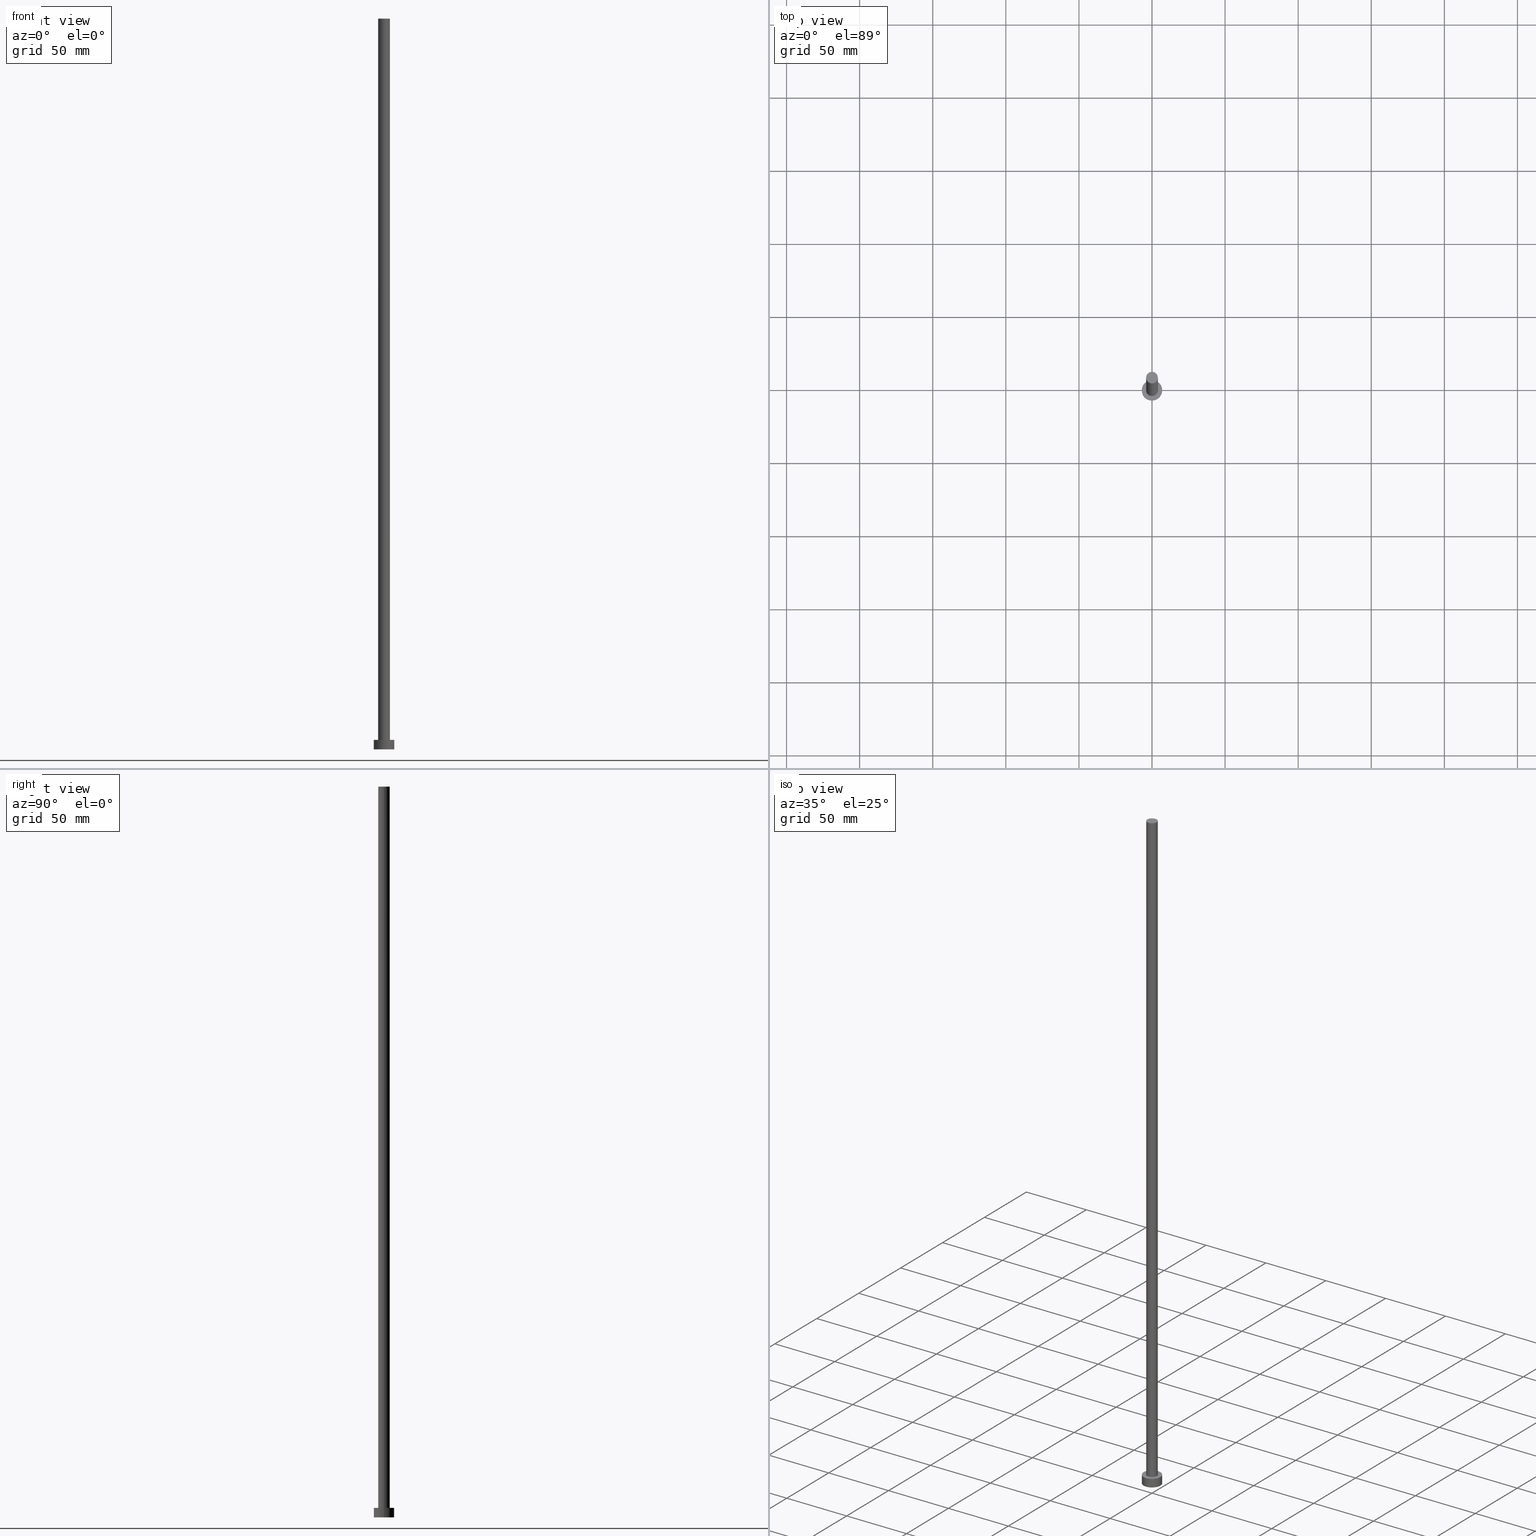
[diagram: canonical four-view strip — front | top / right | iso, engineering-drawing reading convention]
A machine part, canonical four-view strip (front | top / right | iso — engineering-drawing reading convention). The complete STEP part file that produces these views, byte-faithful:
ISO-10303-21;
HEADER;
FILE_DESCRIPTION (( 'STEP AP203' ),
    '1' );
FILE_NAME ('c3be.STEP',
    '2023-02-13T14:18:45',
    ( '' ),
    ( '' ),
    'SwSTEP 2.0',
    'SolidWorks 2019',
    '' );
FILE_SCHEMA (( 'CONFIG_CONTROL_DESIGN' ));
ENDSEC;

DATA;
#1 = ADVANCED_FACE ( 'NONE', ( #161 ), #162, .T. ) ;
#2 = PRODUCT ( 'c3be', 'c3be', '', ( #95 ) ) ;
#3 = ORIENTED_EDGE ( 'NONE', *, *, #59, .T. ) ;
#4 = CC_DESIGN_DATE_AND_TIME_ASSIGNMENT ( #130, #5, ( #211 ) ) ;
#5 = DATE_TIME_ROLE ( 'classification_date' ) ;
#6 = CARTESIAN_POINT ( 'NONE',  ( -7.000000000000000000, 0.000000000000000000, 6.500000000000000000 ) ) ;
#7 = PERSON_AND_ORGANIZATION ( #247, #133 ) ;
#8 = DIRECTION ( 'NONE',  ( 0.000000000000000000, 0.000000000000000000, 1.000000000000000000 ) ) ;
#9 = AXIS2_PLACEMENT_3D ( 'NONE', #83, #8, #135 ) ;
#10 = FACE_OUTER_BOUND ( 'NONE', #193, .T. ) ;
#11 = APPLICATION_PROTOCOL_DEFINITION ( 'international standard', 'config_control_design', 1994, #25 ) ;
#12 = CARTESIAN_POINT ( 'NONE',  ( -7.000000000000000000, 0.000000000000000000, 6.500000000000000000 ) ) ;
#13 = ORIENTED_EDGE ( 'NONE', *, *, #89, .F. ) ;
#14 = DIRECTION ( 'NONE',  ( 1.000000000000000000, 0.000000000000000000, 0.000000000000000000 ) ) ;
#15 = DIRECTION ( 'NONE',  ( 0.000000000000000000, 0.000000000000000000, 1.000000000000000000 ) ) ;
#16 = VECTOR ( 'NONE', #68, 1000.000000000000000 ) ;
#17 = VERTEX_POINT ( 'NONE', #128 ) ;
#18 = EDGE_LOOP ( 'NONE', ( #217, #33 ) ) ;
#19 = SECURITY_CLASSIFICATION_LEVEL ( 'unclassified' ) ;
#20 = VERTEX_POINT ( 'NONE', #164 ) ;
#21 = APPROVAL_PERSON_ORGANIZATION ( #61, #215, #235 ) ;
#22 = EDGE_LOOP ( 'NONE', ( #232, #35 ) ) ;
#23 = AXIS2_PLACEMENT_3D ( 'NONE', #110, #48, #148 ) ;
#24 = CARTESIAN_POINT ( 'NONE',  ( 0.000000000000000000, 0.000000000000000000, 6.500000000000000000 ) ) ;
#25 = APPLICATION_CONTEXT ( 'configuration controlled 3d designs of mechanical parts and assemblies' ) ;
#26 = FACE_OUTER_BOUND ( 'NONE', #57, .T. ) ;
#27 = ADVANCED_FACE ( 'NONE', ( #42, #26 ), #185, .T. ) ;
#28 = DIRECTION ( 'NONE',  ( -1.000000000000000000, 0.000000000000000000, 0.000000000000000000 ) ) ;
#29 = AXIS2_PLACEMENT_3D ( 'NONE', #228, #152, #14 ) ;
#30 = CARTESIAN_POINT ( 'NONE',  ( -4.000000000000000000, 0.000000000000000000, 500.0000000000000000 ) ) ;
#31 =( NAMED_UNIT ( * ) SI_UNIT ( $, .STERADIAN. ) SOLID_ANGLE_UNIT ( ) );
#32 = DIRECTION ( 'NONE',  ( 0.000000000000000000, 0.000000000000000000, 1.000000000000000000 ) ) ;
#33 = ORIENTED_EDGE ( 'NONE', *, *, #227, .F. ) ;
#34 = CARTESIAN_POINT ( 'NONE',  ( 0.000000000000000000, 0.000000000000000000, 0.000000000000000000 ) ) ;
#35 = ORIENTED_EDGE ( 'NONE', *, *, #163, .F. ) ;
#36 = CALENDAR_DATE ( 2023, 13, 2 ) ;
#37 = COORDINATED_UNIVERSAL_TIME_OFFSET ( 1, 0, .AHEAD. ) ;
#38 = EDGE_LOOP ( 'NONE', ( #176, #198, #52, #142 ) ) ;
#39 = CC_DESIGN_SECURITY_CLASSIFICATION ( #211, ( #241 ) ) ;
#40 = PRODUCT_DEFINITION ( 'NEZN�M�', '', #241, #116 ) ;
#41 = VECTOR ( 'NONE', #206, 1000.000000000000000 ) ;
#42 = FACE_BOUND ( 'NONE', #18, .T. ) ;
#43 = LOCAL_TIME ( 15, 18, 45.00000000000000000, #65 ) ;
#44 = COORDINATED_UNIVERSAL_TIME_OFFSET ( 1, 0, .AHEAD. ) ;
#45 = PLANE ( 'NONE',  #236 ) ;
#46 = CARTESIAN_POINT ( 'NONE',  ( -4.000000000000000000, 0.000000000000000000, 500.0000000000000000 ) ) ;
#47 = CARTESIAN_POINT ( 'NONE',  ( 0.000000000000000000, 0.000000000000000000, 6.500000000000000000 ) ) ;
#48 = DIRECTION ( 'NONE',  ( 0.000000000000000000, 0.000000000000000000, 1.000000000000000000 ) ) ;
#49 = CC_DESIGN_PERSON_AND_ORGANIZATION_ASSIGNMENT ( #126, #199, ( #241 ) ) ;
#50 = PLANE ( 'NONE',  #202 ) ;
#51 = PERSON_AND_ORGANIZATION_ROLE ( 'design_owner' ) ;
#52 = ORIENTED_EDGE ( 'NONE', *, *, #227, .T. ) ;
#53 = CLOSED_SHELL ( 'NONE', ( #1, #124, #120, #27, #143, #196, #158 ) ) ;
#54 = EDGE_CURVE ( 'NONE', #157, #20, #254, .T. ) ;
#55 = CIRCLE ( 'NONE', #71, 4.000000000000000000 ) ;
#56 = ORIENTED_EDGE ( 'NONE', *, *, #136, .T. ) ;
#57 = EDGE_LOOP ( 'NONE', ( #213, #251 ) ) ;
#58 = ORIENTED_EDGE ( 'NONE', *, *, #149, .T. ) ;
#59 = EDGE_CURVE ( 'NONE', #154, #17, #70, .T. ) ;
#60 = AXIS2_PLACEMENT_3D ( 'NONE', #34, #32, #119 ) ;
#61 = PERSON_AND_ORGANIZATION ( #247, #133 ) ;
#62 = DATE_TIME_ROLE ( 'creation_date' ) ;
#63 = AXIS2_PLACEMENT_3D ( 'NONE', #47, #207, #28 ) ;
#64 = LINE ( 'NONE', #72, #41 ) ;
#65 = COORDINATED_UNIVERSAL_TIME_OFFSET ( 1, 0, .AHEAD. ) ;
#66 = CARTESIAN_POINT ( 'NONE',  ( 0.000000000000000000, 0.000000000000000000, 6.500000000000000000 ) ) ;
#67 = APPROVAL_STATUS ( 'not_yet_approved' ) ;
#68 = DIRECTION ( 'NONE',  ( -0.000000000000000000, -0.000000000000000000, -1.000000000000000000 ) ) ;
#69 = CALENDAR_DATE ( 2023, 13, 2 ) ;
#70 = LINE ( 'NONE', #46, #16 ) ;
#71 = AXIS2_PLACEMENT_3D ( 'NONE', #156, #15, #91 ) ;
#72 = CARTESIAN_POINT ( 'NONE',  ( 7.000000000000000000, 8.572527594031471218E-16, 6.500000000000000000 ) ) ;
#73 = CARTESIAN_POINT ( 'NONE',  ( 0.000000000000000000, 0.000000000000000000, 6.500000000000000000 ) ) ;
#74 = EDGE_CURVE ( 'NONE', #233, #20, #64, .T. ) ;
#75 = DIRECTION ( 'NONE',  ( 0.000000000000000000, 0.000000000000000000, 1.000000000000000000 ) ) ;
#76 = DIRECTION ( 'NONE',  ( -0.000000000000000000, -0.000000000000000000, -1.000000000000000000 ) ) ;
#77 = VECTOR ( 'NONE', #169, 1000.000000000000000 ) ;
#78 = DIRECTION ( 'NONE',  ( -0.000000000000000000, -0.000000000000000000, -1.000000000000000000 ) ) ;
#79 = COORDINATED_UNIVERSAL_TIME_OFFSET ( 1, 0, .AHEAD. ) ;
#80 = LOCAL_TIME ( 15, 18, 45.00000000000000000, #44 ) ;
#81 = ORIENTED_EDGE ( 'NONE', *, *, #87, .T. ) ;
#82 = DATE_AND_TIME ( #255, #106 ) ;
#83 = CARTESIAN_POINT ( 'NONE',  ( 0.000000000000000000, 0.000000000000000000, 6.500000000000000000 ) ) ;
#84 = CC_DESIGN_APPROVAL ( #215, ( #241 ) ) ;
#85 = APPROVAL_ROLE ( '' ) ;
#86 = CARTESIAN_POINT ( 'NONE',  ( 4.000000000000000000, 4.898587196589412829E-16, 500.0000000000000000 ) ) ;
#87 = EDGE_CURVE ( 'NONE', #154, #125, #165, .T. ) ;
#88 = CYLINDRICAL_SURFACE ( 'NONE', #145, 7.000000000000000000 ) ;
#89 = EDGE_CURVE ( 'NONE', #172, #157, #226, .T. ) ;
#90 = DIRECTION ( 'NONE',  ( 0.000000000000000000, 0.000000000000000000, 1.000000000000000000 ) ) ;
#91 = DIRECTION ( 'NONE',  ( 1.000000000000000000, 0.000000000000000000, 0.000000000000000000 ) ) ;
#92 = DIRECTION ( 'NONE',  ( 1.000000000000000000, 0.000000000000000000, -0.000000000000000000 ) ) ;
#93 = ORIENTED_EDGE ( 'NONE', *, *, #107, .F. ) ;
#94 = CARTESIAN_POINT ( 'NONE',  ( 0.000000000000000000, 0.000000000000000000, 500.0000000000000000 ) ) ;
#95 = MECHANICAL_CONTEXT ( 'NONE', #25, 'mechanical' ) ;
#96 = DATE_AND_TIME ( #36, #159 ) ;
#97 = ORIENTED_EDGE ( 'NONE', *, *, #87, .F. ) ;
#98 = CC_DESIGN_PERSON_AND_ORGANIZATION_ASSIGNMENT ( #234, #218, ( #241 ) ) ;
#99 = CC_DESIGN_APPROVAL ( #170, ( #211 ) ) ;
#100 = EDGE_LOOP ( 'NONE', ( #123, #97, #3, #56 ) ) ;
#101 = ORIENTED_EDGE ( 'NONE', *, *, #74, .F. ) ;
#102 = DIRECTION ( 'NONE',  ( -0.000000000000000000, -0.000000000000000000, -1.000000000000000000 ) ) ;
#103 = PERSON_AND_ORGANIZATION_ROLE ( 'creator' ) ;
#104 = DIRECTION ( 'NONE',  ( -1.000000000000000000, 0.000000000000000000, 0.000000000000000000 ) ) ;
#105 = CARTESIAN_POINT ( 'NONE',  ( 0.000000000000000000, 0.000000000000000000, 500.0000000000000000 ) ) ;
#106 = LOCAL_TIME ( 15, 18, 45.00000000000000000, #253 ) ;
#107 = EDGE_CURVE ( 'NONE', #233, #172, #197, .T. ) ;
#108 = CALENDAR_DATE ( 2023, 13, 2 ) ;
#109 = CARTESIAN_POINT ( 'NONE',  ( 4.000000000000000000, 4.898587196589412829E-16, 6.500000000000000000 ) ) ;
#110 = CARTESIAN_POINT ( 'NONE',  ( 0.000000000000000000, 0.000000000000000000, 6.500000000000000000 ) ) ;
#111 = CIRCLE ( 'NONE', #177, 7.000000000000000000 ) ;
#112 = FACE_OUTER_BOUND ( 'NONE', #144, .T. ) ;
#113 = DIRECTION ( 'NONE',  ( 1.000000000000000000, 0.000000000000000000, 0.000000000000000000 ) ) ;
#114 = ADVANCED_BREP_SHAPE_REPRESENTATION ( 'c3be', ( #134, #60 ), #155 ) ;
#115 = DIRECTION ( 'NONE',  ( 1.000000000000000000, 0.000000000000000000, 0.000000000000000000 ) ) ;
#116 = DESIGN_CONTEXT ( 'detailed design', #222, 'design' ) ;
#117 = DIRECTION ( 'NONE',  ( -1.000000000000000000, 0.000000000000000000, 0.000000000000000000 ) ) ;
#118 = ORIENTED_EDGE ( 'NONE', *, *, #74, .T. ) ;
#119 = DIRECTION ( 'NONE',  ( 1.000000000000000000, 0.000000000000000000, 0.000000000000000000 ) ) ;
#120 = ADVANCED_FACE ( 'NONE', ( #112 ), #242, .T. ) ;
#121 = ORIENTED_EDGE ( 'NONE', *, *, #163, .T. ) ;
#122 = DIRECTION ( 'NONE',  ( 1.000000000000000000, 0.000000000000000000, -0.000000000000000000 ) ) ;
#123 = ORIENTED_EDGE ( 'NONE', *, *, #175, .F. ) ;
#124 = ADVANCED_FACE ( 'NONE', ( #10 ), #88, .T. ) ;
#125 = VERTEX_POINT ( 'NONE', #86 ) ;
#126 = PERSON_AND_ORGANIZATION ( #247, #133 ) ;
#127 = PERSON_AND_ORGANIZATION ( #247, #133 ) ;
#128 = CARTESIAN_POINT ( 'NONE',  ( -4.000000000000000000, 0.000000000000000000, 6.500000000000000000 ) ) ;
#129 = APPROVAL ( #137, 'NEUR�EN�' ) ;
#130 = DATE_AND_TIME ( #69, #43 ) ;
#131 = CC_DESIGN_DATE_AND_TIME_ASSIGNMENT ( #82, #62, ( #40 ) ) ;
#132 = CARTESIAN_POINT ( 'NONE',  ( 0.000000000000000000, 0.000000000000000000, 0.000000000000000000 ) ) ;
#133 = ORGANIZATION ( 'NEUR�EN�', 'NEUR�EN�', '' ) ;
#134 = MANIFOLD_SOLID_BREP ( 'P�idat vysunut�m3', #53 ) ;
#135 = DIRECTION ( 'NONE',  ( 1.000000000000000000, 0.000000000000000000, -0.000000000000000000 ) ) ;
#136 = EDGE_CURVE ( 'NONE', #17, #138, #244, .T. ) ;
#137 = APPROVAL_STATUS ( 'not_yet_approved' ) ;
#138 = VERTEX_POINT ( 'NONE', #109 ) ;
#139 = CIRCLE ( 'NONE', #225, 7.000000000000000000 ) ;
#140 = APPLICATION_PROTOCOL_DEFINITION ( 'international standard', 'config_control_design', 1994, #222 ) ;
#141 = CARTESIAN_POINT ( 'NONE',  ( 0.000000000000000000, 0.000000000000000000, 0.000000000000000000 ) ) ;
#142 = ORIENTED_EDGE ( 'NONE', *, *, #59, .F. ) ;
#143 = ADVANCED_FACE ( 'NONE', ( #186 ), #45, .F. ) ;
#144 = EDGE_LOOP ( 'NONE', ( #101, #229, #219, #192 ) ) ;
#145 = AXIS2_PLACEMENT_3D ( 'NONE', #66, #221, #166 ) ;
#146 = CALENDAR_DATE ( 2023, 13, 2 ) ;
#147 = APPROVAL_STATUS ( 'not_yet_approved' ) ;
#148 = DIRECTION ( 'NONE',  ( 1.000000000000000000, 0.000000000000000000, 0.000000000000000000 ) ) ;
#149 = EDGE_CURVE ( 'NONE', #125, #154, #194, .T. ) ;
#150 = DIRECTION ( 'NONE',  ( 0.000000000000000000, 0.000000000000000000, 1.000000000000000000 ) ) ;
#151 = CC_DESIGN_PERSON_AND_ORGANIZATION_ASSIGNMENT ( #230, #51, ( #2 ) ) ;
#152 = DIRECTION ( 'NONE',  ( 0.000000000000000000, 0.000000000000000000, 1.000000000000000000 ) ) ;
#153 = DIRECTION ( 'NONE',  ( 1.000000000000000000, 0.000000000000000000, 0.000000000000000000 ) ) ;
#154 = VERTEX_POINT ( 'NONE', #30 ) ;
#155 =( GEOMETRIC_REPRESENTATION_CONTEXT ( 3 ) GLOBAL_UNCERTAINTY_ASSIGNED_CONTEXT ( ( #209 ) ) GLOBAL_UNIT_ASSIGNED_CONTEXT ( ( #248, #231, #31 ) ) REPRESENTATION_CONTEXT ( 'NONE', 'WORKASPACE' ) );
#156 = CARTESIAN_POINT ( 'NONE',  ( 0.000000000000000000, 0.000000000000000000, 6.500000000000000000 ) ) ;
#157 = VERTEX_POINT ( 'NONE', #191 ) ;
#158 = ADVANCED_FACE ( 'NONE', ( #250 ), #50, .T. ) ;
#159 = LOCAL_TIME ( 15, 18, 45.00000000000000000, #79 ) ;
#160 = APPROVAL_DATE_TIME ( #96, #215 ) ;
#161 = FACE_OUTER_BOUND ( 'NONE', #38, .T. ) ;
#162 = CYLINDRICAL_SURFACE ( 'NONE', #223, 4.000000000000000000 ) ;
#163 = EDGE_CURVE ( 'NONE', #20, #157, #111, .T. ) ;
#164 = CARTESIAN_POINT ( 'NONE',  ( 7.000000000000000000, 8.572527594031471218E-16, 0.000000000000000000 ) ) ;
#165 = CIRCLE ( 'NONE', #187, 4.000000000000000000 ) ;
#166 = DIRECTION ( 'NONE',  ( -1.000000000000000000, 0.000000000000000000, 0.000000000000000000 ) ) ;
#167 = DIRECTION ( 'NONE',  ( 1.000000000000000000, 0.000000000000000000, 0.000000000000000000 ) ) ;
#168 = DATE_AND_TIME ( #108, #80 ) ;
#169 = DIRECTION ( 'NONE',  ( -0.000000000000000000, -0.000000000000000000, -1.000000000000000000 ) ) ;
#170 = APPROVAL ( #67, 'NEUR�EN�' ) ;
#171 = CARTESIAN_POINT ( 'NONE',  ( 4.000000000000000000, 4.898587196589412829E-16, 500.0000000000000000 ) ) ;
#172 = VERTEX_POINT ( 'NONE', #12 ) ;
#173 = LINE ( 'NONE', #171, #205 ) ;
#174 = PERSON_AND_ORGANIZATION ( #247, #133 ) ;
#175 = EDGE_CURVE ( 'NONE', #125, #138, #173, .T. ) ;
#176 = ORIENTED_EDGE ( 'NONE', *, *, #149, .F. ) ;
#177 = AXIS2_PLACEMENT_3D ( 'NONE', #141, #75, #115 ) ;
#178 = APPROVAL_PERSON_ORGANIZATION ( #174, #129, #210 ) ;
#179 = PERSON_AND_ORGANIZATION ( #247, #133 ) ;
#180 = PRODUCT_DEFINITION_SHAPE ( 'NONE', 'NONE',  #40 ) ;
#181 = APPROVAL_DATE_TIME ( #183, #129 ) ;
#182 = LOCAL_TIME ( 15, 18, 45.00000000000000000, #37 ) ;
#183 = DATE_AND_TIME ( #146, #182 ) ;
#184 = APPROVAL_DATE_TIME ( #168, #170 ) ;
#185 = PLANE ( 'NONE',  #9 ) ;
#186 = FACE_OUTER_BOUND ( 'NONE', #22, .T. ) ;
#187 = AXIS2_PLACEMENT_3D ( 'NONE', #238, #150, #113 ) ;
#188 = DIRECTION ( 'NONE',  ( 0.000000000000000000, 0.000000000000000000, 1.000000000000000000 ) ) ;
#189 = APPROVAL_PERSON_ORGANIZATION ( #7, #170, #85 ) ;
#190 = CARTESIAN_POINT ( 'NONE',  ( 7.000000000000000000, 8.572527594031471218E-16, 6.500000000000000000 ) ) ;
#191 = CARTESIAN_POINT ( 'NONE',  ( -7.000000000000000000, 0.000000000000000000, 0.000000000000000000 ) ) ;
#192 = ORIENTED_EDGE ( 'NONE', *, *, #54, .T. ) ;
#193 = EDGE_LOOP ( 'NONE', ( #93, #118, #121, #13 ) ) ;
#194 = CIRCLE ( 'NONE', #29, 4.000000000000000000 ) ;
#195 = DIRECTION ( 'NONE',  ( 0.000000000000000000, 0.000000000000000000, 1.000000000000000000 ) ) ;
#196 = ADVANCED_FACE ( 'NONE', ( #212 ), #243, .T. ) ;
#197 = CIRCLE ( 'NONE', #220, 7.000000000000000000 ) ;
#198 = ORIENTED_EDGE ( 'NONE', *, *, #175, .T. ) ;
#199 = PERSON_AND_ORGANIZATION_ROLE ( 'design_supplier' ) ;
#200 = CC_DESIGN_APPROVAL ( #129, ( #40 ) ) ;
#201 = EDGE_CURVE ( 'NONE', #172, #233, #139, .T. ) ;
#202 = AXIS2_PLACEMENT_3D ( 'NONE', #94, #90, #92 ) ;
#203 = DIRECTION ( 'NONE',  ( 0.000000000000000000, 0.000000000000000000, 1.000000000000000000 ) ) ;
#204 = PRODUCT_RELATED_PRODUCT_CATEGORY ( 'detail', '', ( #2 ) ) ;
#205 = VECTOR ( 'NONE', #78, 1000.000000000000000 ) ;
#206 = DIRECTION ( 'NONE',  ( -0.000000000000000000, -0.000000000000000000, -1.000000000000000000 ) ) ;
#207 = DIRECTION ( 'NONE',  ( -0.000000000000000000, -0.000000000000000000, -1.000000000000000000 ) ) ;
#208 = DIRECTION ( 'NONE',  ( 1.000000000000000000, 0.000000000000000000, 0.000000000000000000 ) ) ;
#209 = UNCERTAINTY_MEASURE_WITH_UNIT (LENGTH_MEASURE( 1.000000000000000082E-05 ), #248, 'distance_accuracy_value', 'NONE');
#210 = APPROVAL_ROLE ( '' ) ;
#211 = SECURITY_CLASSIFICATION ( '', '', #19 ) ;
#212 = FACE_OUTER_BOUND ( 'NONE', #100, .T. ) ;
#213 = ORIENTED_EDGE ( 'NONE', *, *, #201, .T. ) ;
#214 = AXIS2_PLACEMENT_3D ( 'NONE', #224, #188, #167 ) ;
#215 = APPROVAL ( #147, 'NEUR�EN�' ) ;
#216 = DIRECTION ( 'NONE',  ( 0.000000000000000000, 0.000000000000000000, 1.000000000000000000 ) ) ;
#217 = ORIENTED_EDGE ( 'NONE', *, *, #136, .F. ) ;
#218 = PERSON_AND_ORGANIZATION_ROLE ( 'creator' ) ;
#219 = ORIENTED_EDGE ( 'NONE', *, *, #89, .T. ) ;
#220 = AXIS2_PLACEMENT_3D ( 'NONE', #24, #203, #208 ) ;
#221 = DIRECTION ( 'NONE',  ( -0.000000000000000000, -0.000000000000000000, -1.000000000000000000 ) ) ;
#222 = APPLICATION_CONTEXT ( 'configuration controlled 3d designs of mechanical parts and assemblies' ) ;
#223 = AXIS2_PLACEMENT_3D ( 'NONE', #105, #102, #104 ) ;
#224 = CARTESIAN_POINT ( 'NONE',  ( 0.000000000000000000, 0.000000000000000000, 0.000000000000000000 ) ) ;
#225 = AXIS2_PLACEMENT_3D ( 'NONE', #73, #195, #153 ) ;
#226 = LINE ( 'NONE', #6, #77 ) ;
#227 = EDGE_CURVE ( 'NONE', #138, #17, #55, .T. ) ;
#228 = CARTESIAN_POINT ( 'NONE',  ( 0.000000000000000000, 0.000000000000000000, 500.0000000000000000 ) ) ;
#229 = ORIENTED_EDGE ( 'NONE', *, *, #201, .F. ) ;
#230 = PERSON_AND_ORGANIZATION ( #247, #133 ) ;
#231 =( NAMED_UNIT ( * ) PLANE_ANGLE_UNIT ( ) SI_UNIT ( $, .RADIAN. ) );
#232 = ORIENTED_EDGE ( 'NONE', *, *, #54, .F. ) ;
#233 = VERTEX_POINT ( 'NONE', #190 ) ;
#234 = PERSON_AND_ORGANIZATION ( #247, #133 ) ;
#235 = APPROVAL_ROLE ( '' ) ;
#236 = AXIS2_PLACEMENT_3D ( 'NONE', #132, #216, #122 ) ;
#237 = AXIS2_PLACEMENT_3D ( 'NONE', #245, #76, #117 ) ;
#238 = CARTESIAN_POINT ( 'NONE',  ( 0.000000000000000000, 0.000000000000000000, 500.0000000000000000 ) ) ;
#239 = CC_DESIGN_PERSON_AND_ORGANIZATION_ASSIGNMENT ( #127, #103, ( #40 ) ) ;
#240 = SHAPE_DEFINITION_REPRESENTATION ( #180, #114 ) ;
#241 = PRODUCT_DEFINITION_FORMATION_WITH_SPECIFIED_SOURCE ( 'LIBOVOLN�', '', #2, .NOT_KNOWN. ) ;
#242 = CYLINDRICAL_SURFACE ( 'NONE', #63, 7.000000000000000000 ) ;
#243 = CYLINDRICAL_SURFACE ( 'NONE', #237, 4.000000000000000000 ) ;
#244 = CIRCLE ( 'NONE', #23, 4.000000000000000000 ) ;
#245 = CARTESIAN_POINT ( 'NONE',  ( 0.000000000000000000, 0.000000000000000000, 500.0000000000000000 ) ) ;
#246 = CC_DESIGN_PERSON_AND_ORGANIZATION_ASSIGNMENT ( #179, #252, ( #211 ) ) ;
#247 = PERSON ( 'NEUR�EN�', 'NEUR�EN�', 'NEUR�EN�', ('NEUR�EN�'), ('NEUR�EN�'), ('NEUR�EN�') ) ;
#248 =( LENGTH_UNIT ( ) NAMED_UNIT ( * ) SI_UNIT ( .MILLI., .METRE. ) );
#249 = EDGE_LOOP ( 'NONE', ( #81, #58 ) ) ;
#250 = FACE_OUTER_BOUND ( 'NONE', #249, .T. ) ;
#251 = ORIENTED_EDGE ( 'NONE', *, *, #107, .T. ) ;
#252 = PERSON_AND_ORGANIZATION_ROLE ( 'classification_officer' ) ;
#253 = COORDINATED_UNIVERSAL_TIME_OFFSET ( 1, 0, .AHEAD. ) ;
#254 = CIRCLE ( 'NONE', #214, 7.000000000000000000 ) ;
#255 = CALENDAR_DATE ( 2023, 13, 2 ) ;
ENDSEC;
END-ISO-10303-21;
